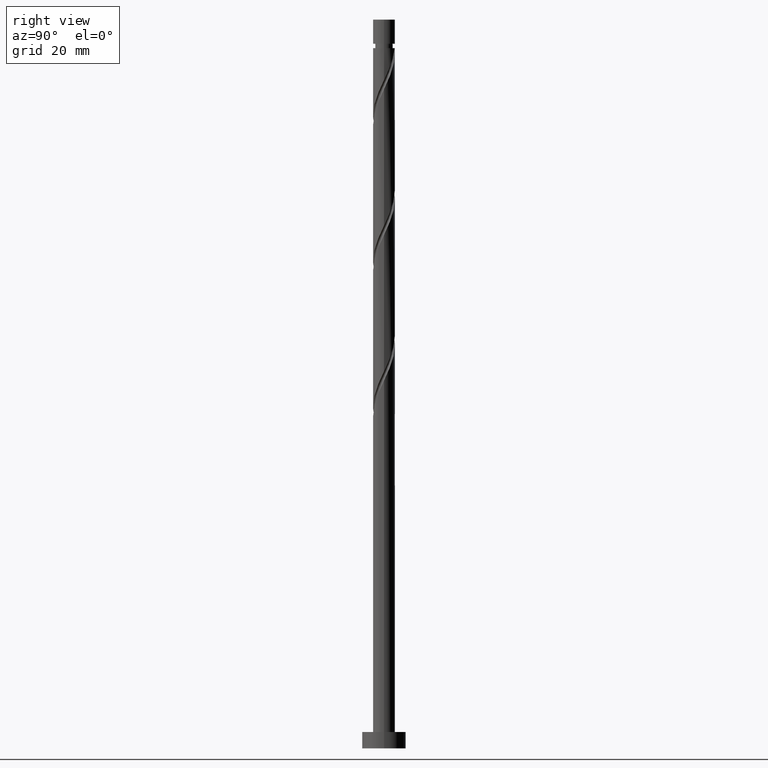
[diagram: clean part render]
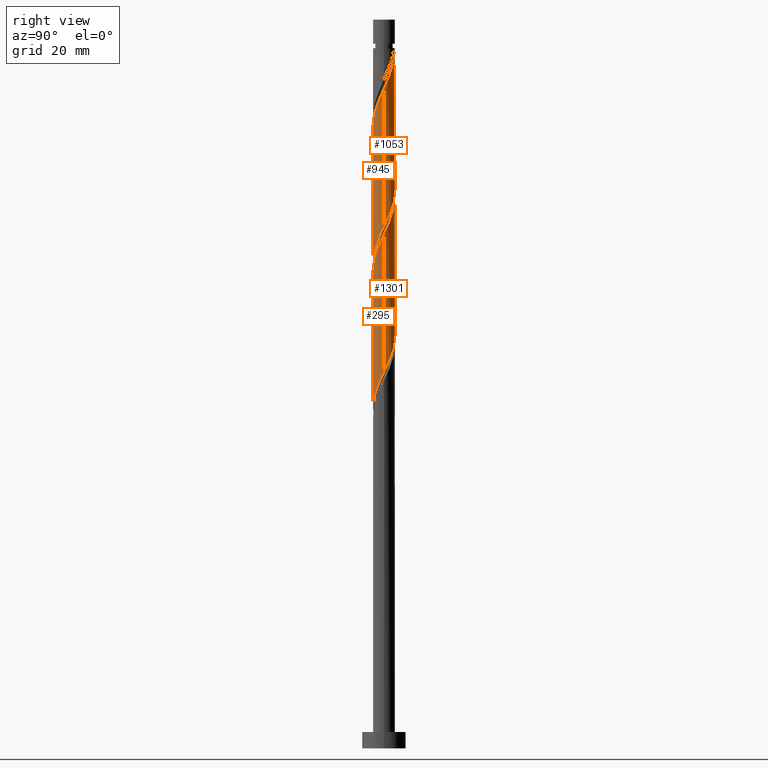
[diagram: same view with one multi-face feature highlighted, each face labeled with its STEP entity id]
A machine part, right view. The highlighted faces form ONE feature: a constant-radius fillet chain: 4 tangent blend faces with common blend radius 2 mm. The faces share edges in the B-rep.
Their STEP definitions:
[1] entity #295 (Cylinder):
#8 = VERTEX_POINT ( 'NONE', #10 ) ;
#10 = CARTESIAN_POINT ( 'NONE',  ( 2.000000000000002665, 1.278808170148940589E-15, 94.03187821203792396 ) ) ;
#15 = CARTESIAN_POINT ( 'NONE',  ( -1.600603406160405084, -1.233189980288572851, 58.51769632770245266 ) ) ;
#22 = CARTESIAN_POINT ( 'NONE',  ( -2.000000000000000000, 0.000000000000000000, 133.4499999999999886 ) ) ;
#35 = CARTESIAN_POINT ( 'NONE',  ( -0.9928482695149690729, -1.759812803970229655, 85.18436299436912407 ) ) ;
#43 = CARTESIAN_POINT ( 'NONE',  ( -0.4568343776401063705, -1.968245701812304072, 86.39648420649034222 ) ) ;
#77 = CARTESIAN_POINT ( 'NONE',  ( -2.000000000000002665, -1.376027504721667048E-15, 80.69854487870459536 ) ) ;
#82 = VECTOR ( 'NONE', #288, 1000.000000000000000 ) ;
#94 = VERTEX_POINT ( 'NONE', #1031 ) ;
#100 = CARTESIAN_POINT ( 'NONE',  ( 1.188337955536408641, -1.634179211325360370, 90.03284784285398246 ) ) ;
#124 = VERTEX_POINT ( 'NONE', #77 ) ;
#132 = DIRECTION ( 'NONE',  ( -0.000000000000000000, -0.000000000000000000, -1.000000000000000000 ) ) ;
#146 = CARTESIAN_POINT ( 'NONE',  ( 2.000000000000000444, -2.303350388338456764E-15, 69.06412050397305791 ) ) ;
#154 = CARTESIAN_POINT ( 'NONE',  ( 0.9928482695149670745, -1.759812803970228101, 64.57830238830852920 ) ) ;
#161 = CARTESIAN_POINT ( 'NONE',  ( -1.786663747202084762, -0.9436744384215548509, 82.76012057012668777 ) ) ;
#169 = CARTESIAN_POINT ( 'NONE',  ( -1.741900447066338176, -0.9827425057002935338, 57.91163572164183648 ) ) ;
#177 = CARTESIAN_POINT ( 'NONE',  ( -1.394470680848406197, -1.433684595806965500, 59.12375693376306174 ) ) ;
#233 = CARTESIAN_POINT ( 'NONE',  ( 1.883197487972274375, -0.7322950311120149935, 92.45709026709637612 ) ) ;
#288 = DIRECTION ( 'NONE',  ( -0.000000000000000000, -0.000000000000000000, -1.000000000000000000 ) ) ;
#295 = ADVANCED_FACE ( 'NONE', ( #1530 ), #1415, .T. ) ;
#309 =( BOUNDED_CURVE ( )  B_SPLINE_CURVE ( 2, ( #146, #794, #1581, #1317, #408, #647, #1327, #420, #1453, #154, #656, #1165, #1419, #1200, #399, #1050, #428, #1191, #177, #15, #169, #526, #898, #1554, #674 ),
 .UNSPECIFIED., .F., .T. ) 
 B_SPLINE_CURVE_WITH_KNOTS ( ( 3, 2, 2, 2, 2, 2, 2, 2, 2, 2, 2, 2, 3 ),
 ( 0.8045252162417511066, 0.8068181818181817677, 0.8181818181818182323, 0.8295454545454545858, 0.8409090909090909394, 0.8522727272727272929, 0.8636363636363636465, 0.8750000000000000000, 0.8863636363636363535, 0.8977272727272727071, 0.9090909090909090606, 0.9204545454545454142, 0.9295252162417512176 ),
 .UNSPECIFIED. ) 
 CURVE ( )  GEOMETRIC_REPRESENTATION_ITEM ( )  RATIONAL_B_SPLINE_CURVE ( ( 0.9061101570135566829, 0.9072237824201389023, 0.9090909090909164991, 0.8998376744372188485, 0.9090909090909164991, 0.8998376744372188485, 0.9090909090909164991, 0.8998376744372188485, 0.9090909090909164991, 0.8998376744372188485, 0.9090909090909164991, 0.8998376744372188485, 0.9090909090909164991, 0.8998376744372188485, 0.9090909090909164991, 0.8998376744372188485, 0.9090909090909164991, 0.8998376744372188485, 0.9090909090909164991, 0.8998376744372188485, 0.9090909090909164991, 0.8998376744372188485, 0.9090909090909164991, 0.9017048011079963343, 0.9061101570135567940 ) ) 
 REPRESENTATION_ITEM ( '' )  );
#330 = CARTESIAN_POINT ( 'NONE',  ( 0.1161895186125003615, -2.017223038501450461, 87.60860541861154616 ) ) ;
#372 =( BOUNDED_CURVE ( )  B_SPLINE_CURVE ( 2, ( #1564, #932, #914, #786, #1308, #161, #924, #665, #1182, #35, #547, #43, #1602, #330, #1144, #614, #1527, #100, #1660, #479, #509, #233, #1514, #1265, #1646 ),
 .UNSPECIFIED., .F., .T. ) 
 B_SPLINE_CURVE_WITH_KNOTS ( ( 3, 2, 2, 2, 2, 2, 2, 2, 2, 2, 2, 2, 3 ),
 ( 0.3045252162417513841, 0.3068181818181817677, 0.3181818181818182323, 0.3295454545454545858, 0.3409090909090909394, 0.3522727272727272929, 0.3636363636363636465, 0.3750000000000000000, 0.3863636363636363535, 0.3977272727272727071, 0.4090909090909090606, 0.4204545454545454142, 0.4295252162417510511 ),
 .UNSPECIFIED. ) 
 CURVE ( )  GEOMETRIC_REPRESENTATION_ITEM ( )  RATIONAL_B_SPLINE_CURVE ( ( 0.9061101570135623451, 0.9072237824201445644, 0.9090909090909219392, 0.8998376744372241776, 0.9090909090909219392, 0.8998376744372241776, 0.9090909090909219392, 0.8998376744372241776, 0.9090909090909219392, 0.8998376744372241776, 0.9090909090909219392, 0.8998376744372241776, 0.9090909090909219392, 0.8998376744372241776, 0.9090909090909219392, 0.8998376744372241776, 0.9090909090909219392, 0.8998376744372241776, 0.9090909090909219392, 0.8998376744372241776, 0.9090909090909219392, 0.8998376744372241776, 0.9090909090909219392, 0.9017048011080018854, 0.9061101570135620120 ) ) 
 REPRESENTATION_ITEM ( '' )  );
#383 = CARTESIAN_POINT ( 'NONE',  ( 0.000000000000000000, 0.000000000000000000, 133.4499999999999886 ) ) ;
#399 = CARTESIAN_POINT ( 'NONE',  ( -0.3979949748426485634, -1.959999999999999964, 61.54799935800549093 ) ) ;
#408 = CARTESIAN_POINT ( 'NONE',  ( 1.883409435608316418, -0.6728810428757545647, 67.60860541861153195 ) ) ;
#420 = CARTESIAN_POINT ( 'NONE',  ( 1.448427499289742126, -1.408810338760219993, 65.79042360042973314 ) ) ;
#428 = CARTESIAN_POINT ( 'NONE',  ( -0.9340691933046018081, -1.768478086411955363, 60.33587814588427989 ) ) ;
#479 = CARTESIAN_POINT ( 'NONE',  ( 1.600603406160406417, -1.233189980288574850, 91.24496905497518640 ) ) ;
#492 = ORIENTED_EDGE ( 'NONE', *, *, #1162, .F. ) ;
#509 = CARTESIAN_POINT ( 'NONE',  ( 1.741900447066340618, -0.9827425057002954212, 91.85102966103579547 ) ) ;
#526 = CARTESIAN_POINT ( 'NONE',  ( -1.883197487972271711, -0.7322950311120142164, 57.30557511558124162 ) ) ;
#539 = VERTEX_POINT ( 'NONE', #908 ) ;
#540 = LINE ( 'NONE', #1298, #959 ) ;
#547 = CARTESIAN_POINT ( 'NONE',  ( -0.7248413235775378327, -1.864029252891266752, 85.79042360042973314 ) ) ;
#606 = ORIENTED_EDGE ( 'NONE', *, *, #1076, .T. ) ;
#614 = CARTESIAN_POINT ( 'NONE',  ( 0.6798004310727963073, -1.902776961498554797, 88.82072663073275010 ) ) ;
#647 = CARTESIAN_POINT ( 'NONE',  ( 1.786663747202082320, -0.9436744384215538517, 67.00254481255093708 ) ) ;
#656 = CARTESIAN_POINT ( 'NONE',  ( 0.7248413235775362784, -1.864029252891264310, 63.97224178224792013 ) ) ;
#665 = CARTESIAN_POINT ( 'NONE',  ( -1.448427499289743459, -1.408810338760221326, 83.97224178224793434 ) ) ;
#674 = CARTESIAN_POINT ( 'NONE',  ( -2.000000000000000000, -3.694334713763628715E-15, 55.73078717063971510 ) ) ;
#786 = CARTESIAN_POINT ( 'NONE',  ( -1.980155124014553403, -0.4020876473299553333, 81.54799935800545541 ) ) ;
#794 = CARTESIAN_POINT ( 'NONE',  ( 2.000000000000000444, -0.05755105304764079194, 68.94202249925483272 ) ) ;
#898 = CARTESIAN_POINT ( 'NONE',  ( -1.948211798543800333, -0.4521844623765076676, 56.69951450952063254 ) ) ;
#908 = CARTESIAN_POINT ( 'NONE',  ( -2.000000000000000000, -3.694334713763628715E-15, 55.73078717063971510 ) ) ;
#914 = CARTESIAN_POINT ( 'NONE',  ( -1.996690616564942733, -0.1150068768444767187, 80.94193875194487475 ) ) ;
#924 = CARTESIAN_POINT ( 'NONE',  ( -1.617545623245913999, -1.176242388590888144, 83.36618117618731105 ) ) ;
#932 = CARTESIAN_POINT ( 'NONE',  ( -2.000000000000002665, -0.05755105304764696061, 80.82064288342280634 ) ) ;
#959 = VECTOR ( 'NONE', #1044, 1000.000000000000000 ) ;
#1031 = CARTESIAN_POINT ( 'NONE',  ( 2.000000000000000444, -2.303350388338456764E-15, 69.06412050397305791 ) ) ;
#1044 = DIRECTION ( 'NONE',  ( -0.000000000000000000, -0.000000000000000000, -1.000000000000000000 ) ) ;
#1050 = CARTESIAN_POINT ( 'NONE',  ( -0.6798004310727959743, -1.902776961498551911, 60.94193875194488186 ) ) ;
#1076 = EDGE_CURVE ( 'NONE', #124, #539, #1170, .T. ) ;
#1100 = ORIENTED_EDGE ( 'NONE', *, *, #1204, .F. ) ;
#1119 = ORIENTED_EDGE ( 'NONE', *, *, #1482, .F. ) ;
#1132 = EDGE_LOOP ( 'NONE', ( #1119, #1100, #606, #492 ) ) ;
#1144 = CARTESIAN_POINT ( 'NONE',  ( 0.3979949748426482858, -1.960000000000002851, 88.21466602467212681 ) ) ;
#1162 = EDGE_CURVE ( 'NONE', #94, #539, #309, .T. ) ;
#1165 = CARTESIAN_POINT ( 'NONE',  ( 0.4568343776401059264, -1.968245701812300963, 63.36618117618729684 ) ) ;
#1170 = LINE ( 'NONE', #22, #82 ) ;
#1182 = CARTESIAN_POINT ( 'NONE',  ( -1.220637884402356210, -1.584311571365225380, 84.57830238830850078 ) ) ;
#1191 = CARTESIAN_POINT ( 'NONE',  ( -1.188337955536407309, -1.634179211325358372, 59.72981753982367792 ) ) ;
#1200 = CARTESIAN_POINT ( 'NONE',  ( -0.1161895186125011109, -2.017223038501448240, 62.15405996406610001 ) ) ;
#1204 = EDGE_CURVE ( 'NONE', #124, #8, #372, .T. ) ;
#1265 = CARTESIAN_POINT ( 'NONE',  ( 2.000000000000001776, -0.2290578547702522838, 93.54591825906661029 ) ) ;
#1298 = CARTESIAN_POINT ( 'NONE',  ( 2.000000000000000000, 2.449293598294706414E-16, 133.4499999999999886 ) ) ;
#1308 = CARTESIAN_POINT ( 'NONE',  ( -1.883409435608319527, -0.6728810428757548978, 82.15405996406612132 ) ) ;
#1317 = CARTESIAN_POINT ( 'NONE',  ( 1.980155124014551182, -0.4020876473299556109, 68.21466602467215523 ) ) ;
#1318 = AXIS2_PLACEMENT_3D ( 'NONE', #383, #132, #1643 ) ;
#1327 = CARTESIAN_POINT ( 'NONE',  ( 1.617545623245912001, -1.176242388590886589, 66.39648420649031380 ) ) ;
#1415 = CYLINDRICAL_SURFACE ( 'NONE', #1318, 2.000000000000000000 ) ;
#1419 = CARTESIAN_POINT ( 'NONE',  ( 0.1703224295138018596, -1.992734370156875157, 62.76012057012668777 ) ) ;
#1453 = CARTESIAN_POINT ( 'NONE',  ( 1.220637884402353990, -1.584311571365224047, 65.18436299436912407 ) ) ;
#1482 = EDGE_CURVE ( 'NONE', #8, #94, #540, .T. ) ;
#1514 = CARTESIAN_POINT ( 'NONE',  ( 1.948211798543802997, -0.4521844623765087223, 93.06315087315701362 ) ) ;
#1527 = CARTESIAN_POINT ( 'NONE',  ( 0.9340691933046023632, -1.768478086411958028, 89.42678723679337338 ) ) ;
#1530 = FACE_OUTER_BOUND ( 'NONE', #1132, .T. ) ;
#1554 = CARTESIAN_POINT ( 'NONE',  ( -2.000000000000000000, -0.2290578547702474266, 56.21674712361101456 ) ) ;
#1564 = CARTESIAN_POINT ( 'NONE',  ( -2.000000000000002665, -1.376027504721667048E-15, 80.69854487870459536 ) ) ;
#1581 = CARTESIAN_POINT ( 'NONE',  ( 1.996690616564939846, -0.1150068768444773709, 68.82072663073276431 ) ) ;
#1602 = CARTESIAN_POINT ( 'NONE',  ( -0.1703224295138029420, -1.992734370156877821, 87.00254481255093708 ) ) ;
#1643 = DIRECTION ( 'NONE',  ( -1.000000000000000000, 0.000000000000000000, 0.000000000000000000 ) ) ;
#1646 = CARTESIAN_POINT ( 'NONE',  ( 2.000000000000002665, 1.278808170148940589E-15, 94.03187821203792396 ) ) ;
#1660 = CARTESIAN_POINT ( 'NONE',  ( 1.394470680848407307, -1.433684595806968165, 90.63890844891457732 ) ) ;
[2] entity #1301 (Cylinder):
#8 = VERTEX_POINT ( 'NONE', #10 ) ;
#10 = CARTESIAN_POINT ( 'NONE',  ( 2.000000000000002665, 1.278808170148940589E-15, 94.03187821203792396 ) ) ;
#29 = CARTESIAN_POINT ( 'NONE',  ( -0.1703224295138024702, 1.992734370156875157, 76.09345390346001636 ) ) ;
#37 =( BOUNDED_CURVE ( )  B_SPLINE_CURVE ( 2, ( #662, #1178, #564, #824, #1110, #89, #596, #854, #988, #1629, #478, #350, #1254, #232, #361, #1102, #846, #1489, #342, #698, #1623, #707, #1368, #223, #58 ),
 .UNSPECIFIED., .F., .T. ) 
 B_SPLINE_CURVE_WITH_KNOTS ( ( 3, 2, 2, 2, 2, 2, 2, 2, 2, 2, 2, 2, 3 ),
 ( 0.4295252162417510511, 0.4318181818181817677, 0.4431818181818182323, 0.4545454545454545858, 0.4659090909090909394, 0.4772727272727272929, 0.4886363636363636465, 0.5000000000000000000, 0.5113636363636363535, 0.5227272727272727071, 0.5340909090909091717, 0.5454545454545454142, 0.5545252162417512176 ),
 .UNSPECIFIED. ) 
 CURVE ( )  GEOMETRIC_REPRESENTATION_ITEM ( )  RATIONAL_B_SPLINE_CURVE ( ( 0.9061101570135620120, 0.9072237824201442313, 0.9090909090909219392, 0.8998376744372241776, 0.9090909090909219392, 0.8998376744372241776, 0.9090909090909219392, 0.8998376744372241776, 0.9090909090909219392, 0.8998376744372241776, 0.9090909090909219392, 0.8998376744372241776, 0.9090909090909219392, 0.8998376744372241776, 0.9090909090909219392, 0.8998376744372241776, 0.9090909090909219392, 0.8998376744372241776, 0.9090909090909219392, 0.8998376744372241776, 0.9090909090909219392, 0.8998376744372241776, 0.9090909090909219392, 0.9017048011080018854, 0.9061101570135621230 ) ) 
 REPRESENTATION_ITEM ( '' )  );
#58 = CARTESIAN_POINT ( 'NONE',  ( -2.000000000000002665, -1.376027504721667048E-15, 107.3652115453712526 ) ) ;
#89 = CARTESIAN_POINT ( 'NONE',  ( 1.786663747202085206, 0.9436744384215541848, 96.09345390346004478 ) ) ;
#94 = VERTEX_POINT ( 'NONE', #1031 ) ;
#125 = DIRECTION ( 'NONE',  ( -0.000000000000000000, -0.000000000000000000, -1.000000000000000000 ) ) ;
#133 = CARTESIAN_POINT ( 'NONE',  ( -1.980155124014551182, 0.4020876473299552778, 81.54799935800548383 ) ) ;
#150 = CARTESIAN_POINT ( 'NONE',  ( 1.394470680848405975, 1.433684595806965723, 72.45709026709637612 ) ) ;
#164 = CARTESIAN_POINT ( 'NONE',  ( -1.883409435608316418, 0.6728810428757542317, 80.94193875194488896 ) ) ;
#223 = CARTESIAN_POINT ( 'NONE',  ( -2.000000000000002220, 0.2290578547702504242, 106.8792515923999389 ) ) ;
#232 = CARTESIAN_POINT ( 'NONE',  ( -0.1161895186125001117, 2.017223038501450461, 100.9419387519448890 ) ) ;
#238 = DIRECTION ( 'NONE',  ( -1.000000000000000000, 0.000000000000000000, 0.000000000000000000 ) ) ;
#276 = CARTESIAN_POINT ( 'NONE',  ( 1.600603406160404418, 1.233189980288572851, 71.85102966103576705 ) ) ;
#293 = CARTESIAN_POINT ( 'NONE',  ( -0.9928482695149674075, 1.759812803970227879, 77.91163572164185780 ) ) ;
#318 =( BOUNDED_CURVE ( )  B_SPLINE_CURVE ( 2, ( #862, #1187, #1160, #133, #164, #507, #909, #1568, #1011, #293, #767, #1423, #29, #1533, #1294, #1038, #1408, #1030, #150, #276, #396, #413, #1433, #1150, #650 ),
 .UNSPECIFIED., .F., .T. ) 
 B_SPLINE_CURVE_WITH_KNOTS ( ( 3, 2, 2, 2, 2, 2, 2, 2, 2, 2, 2, 2, 3 ),
 ( 0.6795252162417512176, 0.6818181818181817677, 0.6931818181818182323, 0.7045454545454545858, 0.7159090909090909394, 0.7272727272727272929, 0.7386363636363636465, 0.7500000000000000000, 0.7613636363636363535, 0.7727272727272727071, 0.7840909090909090606, 0.7954545454545454142, 0.8045252162417511066 ),
 .UNSPECIFIED. ) 
 CURVE ( )  GEOMETRIC_REPRESENTATION_ITEM ( )  RATIONAL_B_SPLINE_CURVE ( ( 0.9061101570135567940, 0.9072237824201390133, 0.9090909090909164991, 0.8998376744372188485, 0.9090909090909164991, 0.8998376744372188485, 0.9090909090909164991, 0.8998376744372188485, 0.9090909090909164991, 0.8998376744372188485, 0.9090909090909164991, 0.8998376744372188485, 0.9090909090909164991, 0.8998376744372188485, 0.9090909090909164991, 0.8998376744372188485, 0.9090909090909164991, 0.8998376744372188485, 0.9090909090909164991, 0.8998376744372188485, 0.9090909090909164991, 0.8998376744372188485, 0.9090909090909164991, 0.9017048011079964454, 0.9061101570135566829 ) ) 
 REPRESENTATION_ITEM ( '' )  );
#342 = CARTESIAN_POINT ( 'NONE',  ( -1.394470680848407307, 1.433684595806968165, 103.9722417822478917 ) ) ;
#350 = CARTESIAN_POINT ( 'NONE',  ( 0.4568343776401065925, 1.968245701812303405, 99.72981753982367081 ) ) ;
#357 = AXIS2_PLACEMENT_3D ( 'NONE', #1502, #125, #238 ) ;
#361 = CARTESIAN_POINT ( 'NONE',  ( -0.3979949748426481193, 1.960000000000002851, 101.5479993580054838 ) ) ;
#374 = ORIENTED_EDGE ( 'NONE', *, *, #1609, .F. ) ;
#377 = CARTESIAN_POINT ( 'NONE',  ( -2.000000000000002665, -1.376027504721667048E-15, 107.3652115453712526 ) ) ;
#396 = CARTESIAN_POINT ( 'NONE',  ( 1.741900447066338176, 0.9827425057002936448, 71.24496905497517218 ) ) ;
#413 = CARTESIAN_POINT ( 'NONE',  ( 1.883197487972271933, 0.7322950311120131062, 70.63890844891457732 ) ) ;
#478 = CARTESIAN_POINT ( 'NONE',  ( 0.7248413235775371666, 1.864029252891267197, 99.12375693376307595 ) ) ;
#507 = CARTESIAN_POINT ( 'NONE',  ( -1.786663747202082320, 0.9436744384215540737, 80.33587814588427989 ) ) ;
#540 = LINE ( 'NONE', #1298, #959 ) ;
#564 = CARTESIAN_POINT ( 'NONE',  ( 1.996690616564942733, 0.1150068768444765244, 94.27527208527818914 ) ) ;
#596 = CARTESIAN_POINT ( 'NONE',  ( 1.617545623245914443, 1.176242388590887700, 96.69951450952063965 ) ) ;
#608 = EDGE_LOOP ( 'NONE', ( #903, #857, #1194, #374 ) ) ;
#650 = CARTESIAN_POINT ( 'NONE',  ( 2.000000000000000444, -2.303350388338456764E-15, 69.06412050397305791 ) ) ;
#662 = CARTESIAN_POINT ( 'NONE',  ( 2.000000000000002665, 1.278808170148940589E-15, 94.03187821203792396 ) ) ;
#698 = CARTESIAN_POINT ( 'NONE',  ( -1.600603406160406639, 1.233189980288574183, 104.5783023883085292 ) ) ;
#707 = CARTESIAN_POINT ( 'NONE',  ( -1.883197487972274153, 0.7322950311120157707, 105.7904236004297331 ) ) ;
#767 = CARTESIAN_POINT ( 'NONE',  ( -0.7248413235775362784, 1.864029252891264310, 77.30557511558123451 ) ) ;
#798 = VECTOR ( 'NONE', #1222, 1000.000000000000000 ) ;
#804 = LINE ( 'NONE', #1610, #798 ) ;
#824 = CARTESIAN_POINT ( 'NONE',  ( 1.980155124014553403, 0.4020876473299550558, 94.88133269133881242 ) ) ;
#846 = CARTESIAN_POINT ( 'NONE',  ( -0.9340691933046029183, 1.768478086411957806, 102.7601205701267020 ) ) ;
#854 = CARTESIAN_POINT ( 'NONE',  ( 1.448427499289744569, 1.408810338760220437, 97.30557511558123451 ) ) ;
#857 = ORIENTED_EDGE ( 'NONE', *, *, #1482, .T. ) ;
#862 = CARTESIAN_POINT ( 'NONE',  ( -2.000000000000000000, -3.694334713763628715E-15, 82.39745383730640071 ) ) ;
#903 = ORIENTED_EDGE ( 'NONE', *, *, #1086, .F. ) ;
#909 = CARTESIAN_POINT ( 'NONE',  ( -1.617545623245911779, 1.176242388590887256, 79.72981753982364239 ) ) ;
#959 = VECTOR ( 'NONE', #1044, 1000.000000000000000 ) ;
#973 = FACE_OUTER_BOUND ( 'NONE', #608, .T. ) ;
#988 = CARTESIAN_POINT ( 'NONE',  ( 1.220637884402355988, 1.584311571365226046, 97.91163572164184359 ) ) ;
#1011 = CARTESIAN_POINT ( 'NONE',  ( -1.220637884402354434, 1.584311571365224047, 78.51769632770246687 ) ) ;
#1030 = CARTESIAN_POINT ( 'NONE',  ( 1.188337955536407531, 1.634179211325358372, 73.06315087315698520 ) ) ;
#1031 = CARTESIAN_POINT ( 'NONE',  ( 2.000000000000000444, -2.303350388338456764E-15, 69.06412050397305791 ) ) ;
#1038 = CARTESIAN_POINT ( 'NONE',  ( 0.6798004310727963073, 1.902776961498551689, 74.27527208527823177 ) ) ;
#1044 = DIRECTION ( 'NONE',  ( -0.000000000000000000, -0.000000000000000000, -1.000000000000000000 ) ) ;
#1086 = EDGE_CURVE ( 'NONE', #8, #1256, #37, .T. ) ;
#1102 = CARTESIAN_POINT ( 'NONE',  ( -0.6798004310727967514, 1.902776961498554353, 102.1540599640660787 ) ) ;
#1110 = CARTESIAN_POINT ( 'NONE',  ( 1.883409435608319527, 0.6728810428757547868, 95.48739329739942150 ) ) ;
#1150 = CARTESIAN_POINT ( 'NONE',  ( 1.999999999999999556, 0.2290578547702495082, 69.55008045694437158 ) ) ;
#1160 = CARTESIAN_POINT ( 'NONE',  ( -1.996690616564939846, 0.1150068768444770934, 82.15405996406610711 ) ) ;
#1178 = CARTESIAN_POINT ( 'NONE',  ( 2.000000000000003109, 0.05755105304763845353, 94.15397621675612072 ) ) ;
#1187 = CARTESIAN_POINT ( 'NONE',  ( -2.000000000000000000, 0.05755105304764320667, 82.27535583258817553 ) ) ;
#1194 = ORIENTED_EDGE ( 'NONE', *, *, #1449, .F. ) ;
#1222 = DIRECTION ( 'NONE',  ( -0.000000000000000000, -0.000000000000000000, -1.000000000000000000 ) ) ;
#1254 = CARTESIAN_POINT ( 'NONE',  ( 0.1703224295138031641, 1.992734370156877821, 100.3358781458842657 ) ) ;
#1256 = VERTEX_POINT ( 'NONE', #377 ) ;
#1294 = CARTESIAN_POINT ( 'NONE',  ( 0.3979949748426487854, 1.959999999999999964, 74.88133269133881242 ) ) ;
#1298 = CARTESIAN_POINT ( 'NONE',  ( 2.000000000000000000, 2.449293598294706414E-16, 133.4499999999999886 ) ) ;
#1301 = ADVANCED_FACE ( 'NONE', ( #973 ), #1650, .T. ) ;
#1368 = CARTESIAN_POINT ( 'NONE',  ( -1.948211798543802997, 0.4521844623765087778, 106.3964842064903564 ) ) ;
#1408 = CARTESIAN_POINT ( 'NONE',  ( 0.9340691933046019191, 1.768478086411955363, 73.66921147921762270 ) ) ;
#1423 = CARTESIAN_POINT ( 'NONE',  ( -0.4568343776401055933, 1.968245701812301407, 76.69951450952065386 ) ) ;
#1433 = CARTESIAN_POINT ( 'NONE',  ( 1.948211798543800333, 0.4521844623765071680, 70.03284784285396825 ) ) ;
#1449 = EDGE_CURVE ( 'NONE', #1621, #94, #318, .T. ) ;
#1458 = CARTESIAN_POINT ( 'NONE',  ( -2.000000000000000000, -3.694334713763628715E-15, 82.39745383730640071 ) ) ;
#1482 = EDGE_CURVE ( 'NONE', #8, #94, #540, .T. ) ;
#1489 = CARTESIAN_POINT ( 'NONE',  ( -1.188337955536408641, 1.634179211325360814, 103.3661811761872968 ) ) ;
#1502 = CARTESIAN_POINT ( 'NONE',  ( 0.000000000000000000, 0.000000000000000000, 133.4499999999999886 ) ) ;
#1533 = CARTESIAN_POINT ( 'NONE',  ( 0.1161895186125005419, 2.017223038501447796, 75.48739329739942150 ) ) ;
#1568 = CARTESIAN_POINT ( 'NONE',  ( -1.448427499289741460, 1.408810338760219993, 79.12375693376307595 ) ) ;
#1609 = EDGE_CURVE ( 'NONE', #1256, #1621, #804, .T. ) ;
#1610 = CARTESIAN_POINT ( 'NONE',  ( -2.000000000000000000, 0.000000000000000000, 133.4499999999999886 ) ) ;
#1621 = VERTEX_POINT ( 'NONE', #1458 ) ;
#1623 = CARTESIAN_POINT ( 'NONE',  ( -1.741900447066340618, 0.9827425057002951991, 105.1843629943691525 ) ) ;
#1629 = CARTESIAN_POINT ( 'NONE',  ( 0.9928482695149681847, 1.759812803970230322, 98.51769632770242424 ) ) ;
#1650 = CYLINDRICAL_SURFACE ( 'NONE', #357, 2.000000000000000000 ) ;
[3] entity #945 (Cylinder):
#18 = ORIENTED_EDGE ( 'NONE', *, *, #771, .F. ) ;
#62 = CARTESIAN_POINT ( 'NONE',  ( -0.3979949748426485634, -1.959999999999999964, 88.21466602467215523 ) ) ;
#71 = CARTESIAN_POINT ( 'NONE',  ( -1.448427499289743459, -1.408810338760221326, 110.6389084489145773 ) ) ;
#76 = CARTESIAN_POINT ( 'NONE',  ( 1.996690616564939846, -0.1150068768444773709, 95.48739329739942150 ) ) ;
#84 = CARTESIAN_POINT ( 'NONE',  ( -0.9928482695149690729, -1.759812803970229655, 111.8510296610357955 ) ) ;
#96 = CARTESIAN_POINT ( 'NONE',  ( -1.948211798543800333, -0.4521844623765076676, 83.36618117618731105 ) ) ;
#196 = CARTESIAN_POINT ( 'NONE',  ( 1.188337955536408641, -1.634179211325360370, 116.6995145095206396 ) ) ;
#206 = CARTESIAN_POINT ( 'NONE',  ( 2.000000000000002665, 1.278808170148940786E-15, 120.6985448787045812 ) ) ;
#215 = CARTESIAN_POINT ( 'NONE',  ( 1.394470680848407307, -1.433684595806968165, 117.3055751155812487 ) ) ;
#227 = CARTESIAN_POINT ( 'NONE',  ( -1.188337955536407309, -1.634179211325358372, 86.39648420649032801 ) ) ;
#324 = CARTESIAN_POINT ( 'NONE',  ( -0.1703224295138029420, -1.992734370156877821, 113.6692114792176227 ) ) ;
#327 = CARTESIAN_POINT ( 'NONE',  ( -0.1161895186125011109, -2.017223038501448240, 88.82072663073273588 ) ) ;
#334 = CARTESIAN_POINT ( 'NONE',  ( -1.617545623245913999, -1.176242388590888144, 110.0328478428539825 ) ) ;
#346 = CARTESIAN_POINT ( 'NONE',  ( -1.741900447066338176, -0.9827425057002935338, 84.57830238830848657 ) ) ;
#377 = CARTESIAN_POINT ( 'NONE',  ( -2.000000000000002665, -1.376027504721667048E-15, 107.3652115453712526 ) ) ;
#412 = CARTESIAN_POINT ( 'NONE',  ( 2.000000000000000000, 2.449293598294706414E-16, 133.4499999999999886 ) ) ;
#447 = CARTESIAN_POINT ( 'NONE',  ( 0.9928482695149670745, -1.759812803970228101, 91.24496905497521482 ) ) ;
#455 = CARTESIAN_POINT ( 'NONE',  ( 1.948211798543802997, -0.4521844623765087223, 119.7298175398236566 ) ) ;
#466 = CARTESIAN_POINT ( 'NONE',  ( -2.000000000000000000, -3.694334713763628715E-15, 82.39745383730640071 ) ) ;
#474 = CARTESIAN_POINT ( 'NONE',  ( -2.000000000000002665, -1.376027504721667048E-15, 107.3652115453712526 ) ) ;
#480 = EDGE_LOOP ( 'NONE', ( #1432, #874, #1367, #18 ) ) ;
#551 = DIRECTION ( 'NONE',  ( -1.000000000000000000, 0.000000000000000000, 0.000000000000000000 ) ) ;
#554 = EDGE_CURVE ( 'NONE', #1656, #1441, #1173, .T. ) ;
#569 = CARTESIAN_POINT ( 'NONE',  ( 0.1703224295138018596, -1.992734370156875157, 89.42678723679337338 ) ) ;
#576 = CARTESIAN_POINT ( 'NONE',  ( 1.448427499289742126, -1.408810338760219993, 92.45709026709641876 ) ) ;
#600 = CARTESIAN_POINT ( 'NONE',  ( -1.980155124014553403, -0.4020876473299553333, 108.2146660246721410 ) ) ;
#692 = CARTESIAN_POINT ( 'NONE',  ( -1.220637884402356210, -1.584311571365225380, 111.2449690549752006 ) ) ;
#700 = CARTESIAN_POINT ( 'NONE',  ( 1.883409435608316418, -0.6728810428757545647, 94.27527208527821756 ) ) ;
#710 = CARTESIAN_POINT ( 'NONE',  ( 2.000000000000000444, -0.05755105304764637081, 95.60868916592144728 ) ) ;
#716 = CARTESIAN_POINT ( 'NONE',  ( -2.000000000000002665, -0.05755105304764054908, 107.4873095500894493 ) ) ;
#727 = CARTESIAN_POINT ( 'NONE',  ( 2.000000000000000444, -2.303350388338456764E-15, 95.73078717063968668 ) ) ;
#771 = EDGE_CURVE ( 'NONE', #1441, #1621, #929, .T. ) ;
#798 = VECTOR ( 'NONE', #1222, 1000.000000000000000 ) ;
#802 = EDGE_CURVE ( 'NONE', #1256, #1656, #1464, .T. ) ;
#804 = LINE ( 'NONE', #1610, #798 ) ;
#812 = CARTESIAN_POINT ( 'NONE',  ( 1.786663747202082320, -0.9436744384215538517, 93.66921147921760848 ) ) ;
#821 = CARTESIAN_POINT ( 'NONE',  ( 0.3979949748426482858, -1.960000000000002851, 114.8813326913388124 ) ) ;
#830 = CARTESIAN_POINT ( 'NONE',  ( 0.9340691933046023632, -1.768478086411958028, 116.0934539034600448 ) ) ;
#837 = CARTESIAN_POINT ( 'NONE',  ( 2.000000000000002665, 1.278808170148940589E-15, 120.6985448787045669 ) ) ;
#874 = ORIENTED_EDGE ( 'NONE', *, *, #802, .F. ) ;
#895 = CARTESIAN_POINT ( 'NONE',  ( 0.000000000000000000, 0.000000000000000000, 133.4499999999999886 ) ) ;
#916 = DIRECTION ( 'NONE',  ( -0.000000000000000000, -0.000000000000000000, -1.000000000000000000 ) ) ;
#929 =( BOUNDED_CURVE ( )  B_SPLINE_CURVE ( 2, ( #727, #710, #76, #963, #700, #812, #1241, #576, #1250, #447, #972, #948, #569, #327, #62, #1492, #1224, #227, #1471, #1106, #346, #955, #96, #1634, #466 ),
 .UNSPECIFIED., .F., .T. ) 
 B_SPLINE_CURVE_WITH_KNOTS ( ( 3, 2, 2, 2, 2, 2, 2, 2, 2, 2, 2, 2, 3 ),
 ( 0.5545252162417513286, 0.5568181818181817677, 0.5681818181818182323, 0.5795454545454545858, 0.5909090909090909394, 0.6022727272727272929, 0.6136363636363636465, 0.6250000000000000000, 0.6363636363636363535, 0.6477272727272727071, 0.6590909090909090606, 0.6704545454545454142, 0.6795252162417512176 ),
 .UNSPECIFIED. ) 
 CURVE ( )  GEOMETRIC_REPRESENTATION_ITEM ( )  RATIONAL_B_SPLINE_CURVE ( ( 0.9061101570135567940, 0.9072237824201390133, 0.9090909090909164991, 0.8998376744372188485, 0.9090909090909164991, 0.8998376744372188485, 0.9090909090909164991, 0.8998376744372188485, 0.9090909090909164991, 0.8998376744372188485, 0.9090909090909164991, 0.8998376744372188485, 0.9090909090909164991, 0.8998376744372188485, 0.9090909090909164991, 0.8998376744372188485, 0.9090909090909164991, 0.8998376744372188485, 0.9090909090909164991, 0.8998376744372188485, 0.9090909090909164991, 0.8998376744372188485, 0.9090909090909164991, 0.9017048011079963343, 0.9061101570135567940 ) ) 
 REPRESENTATION_ITEM ( '' )  );
#930 = CYLINDRICAL_SURFACE ( 'NONE', #1244, 2.000000000000000000 ) ;
#941 = CARTESIAN_POINT ( 'NONE',  ( -1.996690616564942733, -0.1150068768444767187, 107.6086054186115319 ) ) ;
#945 = ADVANCED_FACE ( 'NONE', ( #1059 ), #930, .T. ) ;
#948 = CARTESIAN_POINT ( 'NONE',  ( 0.4568343776401059264, -1.968245701812300963, 90.03284784285395403 ) ) ;
#955 = CARTESIAN_POINT ( 'NONE',  ( -1.883197487972271711, -0.7322950311120142164, 83.97224178224790592 ) ) ;
#963 = CARTESIAN_POINT ( 'NONE',  ( 1.980155124014551182, -0.4020876473299556109, 94.88133269133882663 ) ) ;
#972 = CARTESIAN_POINT ( 'NONE',  ( 0.7248413235775362784, -1.864029252891264310, 90.63890844891457732 ) ) ;
#985 = CARTESIAN_POINT ( 'NONE',  ( 2.000000000000000444, -2.303350388338456764E-15, 95.73078717063968668 ) ) ;
#1048 = DIRECTION ( 'NONE',  ( -0.000000000000000000, -0.000000000000000000, -1.000000000000000000 ) ) ;
#1059 = FACE_OUTER_BOUND ( 'NONE', #480, .T. ) ;
#1089 = CARTESIAN_POINT ( 'NONE',  ( -0.7248413235775378327, -1.864029252891266752, 112.4570902670963761 ) ) ;
#1095 = CARTESIAN_POINT ( 'NONE',  ( -1.786663747202084762, -0.9436744384215548509, 109.4267872367933592 ) ) ;
#1106 = CARTESIAN_POINT ( 'NONE',  ( -1.600603406160405084, -1.233189980288572851, 85.18436299436912407 ) ) ;
#1115 = CARTESIAN_POINT ( 'NONE',  ( -0.4568343776401063705, -1.968245701812304072, 113.0631508731569852 ) ) ;
#1173 = LINE ( 'NONE', #412, #1401 ) ;
#1222 = DIRECTION ( 'NONE',  ( -0.000000000000000000, -0.000000000000000000, -1.000000000000000000 ) ) ;
#1224 = CARTESIAN_POINT ( 'NONE',  ( -0.9340691933046018081, -1.768478086411955363, 87.00254481255093708 ) ) ;
#1233 = CARTESIAN_POINT ( 'NONE',  ( -1.883409435608319527, -0.6728810428757548978, 108.8207266307327643 ) ) ;
#1241 = CARTESIAN_POINT ( 'NONE',  ( 1.617545623245912001, -1.176242388590886589, 93.06315087315697099 ) ) ;
#1244 = AXIS2_PLACEMENT_3D ( 'NONE', #895, #1048, #551 ) ;
#1250 = CARTESIAN_POINT ( 'NONE',  ( 1.220637884402353990, -1.584311571365224047, 91.85102966103580968 ) ) ;
#1256 = VERTEX_POINT ( 'NONE', #377 ) ;
#1350 = CARTESIAN_POINT ( 'NONE',  ( 0.6798004310727963073, -1.902776961498554797, 115.4873932973994215 ) ) ;
#1367 = ORIENTED_EDGE ( 'NONE', *, *, #1609, .T. ) ;
#1401 = VECTOR ( 'NONE', #916, 1000.000000000000000 ) ;
#1432 = ORIENTED_EDGE ( 'NONE', *, *, #554, .F. ) ;
#1441 = VERTEX_POINT ( 'NONE', #985 ) ;
#1458 = CARTESIAN_POINT ( 'NONE',  ( -2.000000000000000000, -3.694334713763628715E-15, 82.39745383730640071 ) ) ;
#1464 =( BOUNDED_CURVE ( )  B_SPLINE_CURVE ( 2, ( #474, #716, #941, #600, #1233, #1095, #334, #71, #692, #84, #1089, #1115, #324, #1501, #821, #1350, #830, #196, #215, #1612, #1467, #1619, #455, #1481, #206 ),
 .UNSPECIFIED., .F., .T. ) 
 B_SPLINE_CURVE_WITH_KNOTS ( ( 3, 2, 2, 2, 2, 2, 2, 2, 2, 2, 2, 2, 3 ),
 ( 0.5545252162417512176, 0.5568181818181818787, 0.5681818181818181213, 0.5795454545454545858, 0.5909090909090908283, 0.6022727272727272929, 0.6136363636363636465, 0.6250000000000000000, 0.6363636363636363535, 0.6477272727272727071, 0.6590909090909091717, 0.6704545454545454142, 0.6795252162417513286 ),
 .UNSPECIFIED. ) 
 CURVE ( )  GEOMETRIC_REPRESENTATION_ITEM ( )  RATIONAL_B_SPLINE_CURVE ( ( 0.9061101570135621230, 0.9072237824201443424, 0.9090909090909219392, 0.8998376744372241776, 0.9090909090909219392, 0.8998376744372241776, 0.9090909090909219392, 0.8998376744372241776, 0.9090909090909219392, 0.8998376744372241776, 0.9090909090909219392, 0.8998376744372241776, 0.9090909090909219392, 0.8998376744372241776, 0.9090909090909219392, 0.8998376744372241776, 0.9090909090909219392, 0.8998376744372241776, 0.9090909090909219392, 0.8998376744372241776, 0.9090909090909219392, 0.8998376744372241776, 0.9090909090909219392, 0.9017048011080017744, 0.9061101570135622341 ) ) 
 REPRESENTATION_ITEM ( '' )  );
#1467 = CARTESIAN_POINT ( 'NONE',  ( 1.741900447066340618, -0.9827425057002954212, 118.5176963277024242 ) ) ;
#1471 = CARTESIAN_POINT ( 'NONE',  ( -1.394470680848406197, -1.433684595806965500, 85.79042360042973314 ) ) ;
#1481 = CARTESIAN_POINT ( 'NONE',  ( 2.000000000000002665, -0.2290578547702475654, 120.2125849257332959 ) ) ;
#1492 = CARTESIAN_POINT ( 'NONE',  ( -0.6798004310727959743, -1.902776961498551911, 87.60860541861157458 ) ) ;
#1501 = CARTESIAN_POINT ( 'NONE',  ( 0.1161895186125003615, -2.017223038501450461, 114.2752720852781891 ) ) ;
#1609 = EDGE_CURVE ( 'NONE', #1256, #1621, #804, .T. ) ;
#1610 = CARTESIAN_POINT ( 'NONE',  ( -2.000000000000000000, 0.000000000000000000, 133.4499999999999886 ) ) ;
#1612 = CARTESIAN_POINT ( 'NONE',  ( 1.600603406160406417, -1.233189980288574850, 117.9116357216418294 ) ) ;
#1619 = CARTESIAN_POINT ( 'NONE',  ( 1.883197487972274375, -0.7322950311120149935, 119.1237569337630333 ) ) ;
#1621 = VERTEX_POINT ( 'NONE', #1458 ) ;
#1634 = CARTESIAN_POINT ( 'NONE',  ( -2.000000000000000000, -0.2290578547702474266, 82.88341379027767175 ) ) ;
#1656 = VERTEX_POINT ( 'NONE', #837 ) ;
[4] entity #1053 (Cylinder):
#4 = VERTEX_POINT ( 'NONE', #516 ) ;
#107 = CARTESIAN_POINT ( 'NONE',  ( 1.996690616564942733, 0.1150068768444765244, 120.9419387519448605 ) ) ;
#121 = CARTESIAN_POINT ( 'NONE',  ( 0.6798004310727963073, 1.902776961498551689, 100.9419387519449032 ) ) ;
#136 = CARTESIAN_POINT ( 'NONE',  ( -0.9928482695149674075, 1.759812803970227879, 104.5783023883085150 ) ) ;
#139 = EDGE_CURVE ( 'NONE', #1656, #780, #148, .T. ) ;
#148 =( BOUNDED_CURVE ( )  B_SPLINE_CURVE ( 2, ( #1613, #1262, #107, #1663, #1018, #752, #1140, #627, #513, #1134, #270, #886, #1655, #1518, #1398 ),
 .UNSPECIFIED., .F., .T. ) 
 B_SPLINE_CURVE_WITH_KNOTS ( ( 3, 2, 2, 2, 2, 2, 2, 3 ),
 ( 0.6795252162417513286, 0.6818181818181818787, 0.6931818181818181213, 0.7045454545454545858, 0.7159090909090908283, 0.7272727272727272929, 0.7386363636363636465, 0.7500000000000000000 ),
 .UNSPECIFIED. ) 
 CURVE ( )  GEOMETRIC_REPRESENTATION_ITEM ( )  RATIONAL_B_SPLINE_CURVE ( ( 0.9061101570135622341, 0.9072237824201443424, 0.9090909090909219392, 0.8998376744372241776, 0.9090909090909219392, 0.8998376744372241776, 0.9090909090909219392, 0.8998376744372241776, 0.9090909090909219392, 0.8998376744372241776, 0.9090909090909219392, 0.8998376744372241776, 0.9090909090909219392, 0.8998376744372241776, 0.9090909090909219392 ) ) 
 REPRESENTATION_ITEM ( '' )  );
#152 = DIRECTION ( 'NONE',  ( -0.000000000000000000, -0.000000000000000000, -1.000000000000000000 ) ) ;
#183 = EDGE_CURVE ( 'NONE', #494, #780, #1202, .T. ) ;
#191 = VECTOR ( 'NONE', #317, 1000.000000000000000 ) ;
#250 = CARTESIAN_POINT ( 'NONE',  ( -1.617545623245911779, 1.176242388590887256, 106.3964842064903280 ) ) ;
#265 = CARTESIAN_POINT ( 'NONE',  ( 0.3979949748426487854, 1.959999999999999964, 101.5479993580054980 ) ) ;
#270 = CARTESIAN_POINT ( 'NONE',  ( 0.7248413235775371666, 1.864029252891267197, 125.7904236004297474 ) ) ;
#280 = DIRECTION ( 'NONE',  ( -1.000000000000000000, 0.000000000000000000, 0.000000000000000000 ) ) ;
#301 = CARTESIAN_POINT ( 'NONE',  ( -1.999999999999996669, 0.000000000000000000, 128.2146660246721694 ) ) ;
#317 = DIRECTION ( 'NONE',  ( -0.000000000000000000, -0.000000000000000000, -1.000000000000000000 ) ) ;
#332 = ORIENTED_EDGE ( 'NONE', *, *, #819, .F. ) ;
#351 = CARTESIAN_POINT ( 'NONE',  ( 1.948211798543800333, 0.4521844623765071680, 96.69951450952063965 ) ) ;
#370 = CARTESIAN_POINT ( 'NONE',  ( -2.000000000000000444, 1.884559408640555319E-15, 109.0641205039730437 ) ) ;
#380 = CARTESIAN_POINT ( 'NONE',  ( 1.741900447066338176, 0.9827425057002936448, 97.91163572164182938 ) ) ;
#384 = ORIENTED_EDGE ( 'NONE', *, *, #139, .F. ) ;
#398 = FACE_OUTER_BOUND ( 'NONE', #1185, .T. ) ;
#412 = CARTESIAN_POINT ( 'NONE',  ( 2.000000000000000000, 2.449293598294706414E-16, 133.4499999999999886 ) ) ;
#494 = VERTEX_POINT ( 'NONE', #301 ) ;
#504 = CARTESIAN_POINT ( 'NONE',  ( 1.600603406160404418, 1.233189980288572851, 98.51769632770245266 ) ) ;
#513 = CARTESIAN_POINT ( 'NONE',  ( 1.220637884402355988, 1.584311571365226046, 124.5783023883085292 ) ) ;
#516 = CARTESIAN_POINT ( 'NONE',  ( -2.000000000000000444, 1.884559408640555319E-15, 109.0641205039730437 ) ) ;
#554 = EDGE_CURVE ( 'NONE', #1656, #1441, #1173, .T. ) ;
#605 = AXIS2_PLACEMENT_3D ( 'NONE', #1020, #620, #635 ) ;
#620 = DIRECTION ( 'NONE',  ( -0.000000000000000000, -0.000000000000000000, -1.000000000000000000 ) ) ;
#627 = CARTESIAN_POINT ( 'NONE',  ( 1.448427499289744569, 1.408810338760220437, 123.9722417822479059 ) ) ;
#635 = DIRECTION ( 'NONE',  ( -1.000000000000000000, 0.000000000000000000, 0.000000000000000000 ) ) ;
#639 = CARTESIAN_POINT ( 'NONE',  ( 0.9340691933046019191, 1.768478086411955363, 100.3358781458842657 ) ) ;
#731 = CARTESIAN_POINT ( 'NONE',  ( 2.000000000000000444, -2.303350388338456764E-15, 95.73078717063968668 ) ) ;
#752 = CARTESIAN_POINT ( 'NONE',  ( 1.786663747202085206, 0.9436744384215541848, 122.7601205701267020 ) ) ;
#780 = VERTEX_POINT ( 'NONE', #1600 ) ;
#819 = EDGE_CURVE ( 'NONE', #494, #4, #850, .T. ) ;
#837 = CARTESIAN_POINT ( 'NONE',  ( 2.000000000000002665, 1.278808170148940589E-15, 120.6985448787045669 ) ) ;
#850 = LINE ( 'NONE', #1372, #191 ) ;
#855 = CARTESIAN_POINT ( 'NONE',  ( 2.000000000000000888, 0.2290578547702440404, 96.21674712361100035 ) ) ;
#872 = CARTESIAN_POINT ( 'NONE',  ( -1.980155124014551182, 0.4020876473299552778, 108.2146660246721694 ) ) ;
#882 = CARTESIAN_POINT ( 'NONE',  ( 1.188337955536407531, 1.634179211325358372, 99.72981753982368502 ) ) ;
#885 = AXIS2_PLACEMENT_3D ( 'NONE', #905, #152, #280 ) ;
#886 = CARTESIAN_POINT ( 'NONE',  ( 0.4568343776401065925, 1.968245701812303405, 126.3964842064903280 ) ) ;
#890 = CARTESIAN_POINT ( 'NONE',  ( -1.220637884402354434, 1.584311571365224047, 105.1843629943691383 ) ) ;
#905 = CARTESIAN_POINT ( 'NONE',  ( 0.000000000000000000, 0.000000000000000000, 133.4499999999999886 ) ) ;
#916 = DIRECTION ( 'NONE',  ( -0.000000000000000000, -0.000000000000000000, -1.000000000000000000 ) ) ;
#977 = CARTESIAN_POINT ( 'NONE',  ( 1.883197487972271933, 0.7322950311120131062, 97.30557511558123451 ) ) ;
#985 = CARTESIAN_POINT ( 'NONE',  ( 2.000000000000000444, -2.303350388338456764E-15, 95.73078717063968668 ) ) ;
#998 = CARTESIAN_POINT ( 'NONE',  ( -1.996690616564939846, 0.1150068768444770934, 108.8207266307327359 ) ) ;
#1014 = CARTESIAN_POINT ( 'NONE',  ( -1.786663747202082320, 0.9436744384215540737, 107.0025448125509229 ) ) ;
#1018 = CARTESIAN_POINT ( 'NONE',  ( 1.883409435608319527, 0.6728810428757547868, 122.1540599640661071 ) ) ;
#1020 = CARTESIAN_POINT ( 'NONE',  ( 0.000000000000000000, 0.000000000000000000, 128.2146660246721694 ) ) ;
#1053 = ADVANCED_FACE ( 'NONE', ( #398 ), #1304, .T. ) ;
#1134 = CARTESIAN_POINT ( 'NONE',  ( 0.9928482695149681847, 1.759812803970230322, 125.1843629943691241 ) ) ;
#1138 = CARTESIAN_POINT ( 'NONE',  ( 1.394470680848405975, 1.433684595806965723, 99.12375693376307595 ) ) ;
#1140 = CARTESIAN_POINT ( 'NONE',  ( 1.617545623245914443, 1.176242388590887700, 123.3661811761873111 ) ) ;
#1159 = ORIENTED_EDGE ( 'NONE', *, *, #554, .T. ) ;
#1161 = ORIENTED_EDGE ( 'NONE', *, *, #183, .T. ) ;
#1173 = LINE ( 'NONE', #412, #1401 ) ;
#1185 = EDGE_LOOP ( 'NONE', ( #384, #1159, #1370, #332, #1161 ) ) ;
#1202 = CIRCLE ( 'NONE', #605, 1.999999999999996669 ) ;
#1229 =( BOUNDED_CURVE ( )  B_SPLINE_CURVE ( 2, ( #370, #1278, #998, #872, #1394, #1014, #250, #1537, #890, #136, #1403, #1506, #1412, #1272, #265, #121, #639, #882, #1138, #504, #380, #977, #351, #855, #731 ),
 .UNSPECIFIED., .F., .T. ) 
 B_SPLINE_CURVE_WITH_KNOTS ( ( 3, 2, 2, 2, 2, 2, 2, 2, 2, 2, 2, 2, 3 ),
 ( 0.4295252162417513841, 0.4318181818181818232, 0.4431818181818181768, 0.4545454545454545303, 0.4659090909090908839, 0.4772727272727272929, 0.4886363636363636465, 0.5000000000000000000, 0.5113636363636363535, 0.5227272727272727071, 0.5340909090909090606, 0.5454545454545454142, 0.5545252162417513286 ),
 .UNSPECIFIED. ) 
 CURVE ( )  GEOMETRIC_REPRESENTATION_ITEM ( )  RATIONAL_B_SPLINE_CURVE ( ( 0.9061101570135567940, 0.9072237824201390133, 0.9090909090909164991, 0.8998376744372188485, 0.9090909090909164991, 0.8998376744372188485, 0.9090909090909164991, 0.8998376744372188485, 0.9090909090909164991, 0.8998376744372188485, 0.9090909090909164991, 0.8998376744372188485, 0.9090909090909164991, 0.8998376744372188485, 0.9090909090909164991, 0.8998376744372188485, 0.9090909090909164991, 0.8998376744372188485, 0.9090909090909164991, 0.8998376744372188485, 0.9090909090909164991, 0.8998376744372188485, 0.9090909090909164991, 0.9017048011079962233, 0.9061101570135567940 ) ) 
 REPRESENTATION_ITEM ( '' )  );
#1236 = EDGE_CURVE ( 'NONE', #4, #1441, #1229, .T. ) ;
#1262 = CARTESIAN_POINT ( 'NONE',  ( 2.000000000000003109, 0.05755105304764319973, 120.8206428834228205 ) ) ;
#1272 = CARTESIAN_POINT ( 'NONE',  ( 0.1161895186125005419, 2.017223038501447796, 102.1540599640660929 ) ) ;
#1278 = CARTESIAN_POINT ( 'NONE',  ( -2.000000000000000444, 0.05755105304764599611, 108.9420224992547901 ) ) ;
#1304 = CYLINDRICAL_SURFACE ( 'NONE', #885, 2.000000000000000000 ) ;
#1370 = ORIENTED_EDGE ( 'NONE', *, *, #1236, .F. ) ;
#1372 = CARTESIAN_POINT ( 'NONE',  ( -2.000000000000000000, 0.000000000000000000, 133.4499999999999886 ) ) ;
#1394 = CARTESIAN_POINT ( 'NONE',  ( -1.883409435608316418, 0.6728810428757542317, 107.6086054186115604 ) ) ;
#1398 = CARTESIAN_POINT ( 'NONE',  ( -0.3979949748426479528, 1.960000000000000409, 128.2146660246721694 ) ) ;
#1401 = VECTOR ( 'NONE', #916, 1000.000000000000000 ) ;
#1403 = CARTESIAN_POINT ( 'NONE',  ( -0.7248413235775362784, 1.864029252891264310, 103.9722417822478917 ) ) ;
#1412 = CARTESIAN_POINT ( 'NONE',  ( -0.1703224295138024702, 1.992734370156875157, 102.7601205701266736 ) ) ;
#1441 = VERTEX_POINT ( 'NONE', #985 ) ;
#1506 = CARTESIAN_POINT ( 'NONE',  ( -0.4568343776401055933, 1.968245701812301407, 103.3661811761873253 ) ) ;
#1518 = CARTESIAN_POINT ( 'NONE',  ( -0.1161895186125001117, 2.017223038501450461, 127.6086054186115604 ) ) ;
#1537 = CARTESIAN_POINT ( 'NONE',  ( -1.448427499289741460, 1.408810338760219993, 105.7904236004297047 ) ) ;
#1600 = CARTESIAN_POINT ( 'NONE',  ( -0.3979949748426479528, 1.960000000000000409, 128.2146660246721694 ) ) ;
#1613 = CARTESIAN_POINT ( 'NONE',  ( 2.000000000000002665, 1.278808170148940786E-15, 120.6985448787045812 ) ) ;
#1655 = CARTESIAN_POINT ( 'NONE',  ( 0.1703224295138031641, 1.992734370156877821, 127.0025448125509655 ) ) ;
#1656 = VERTEX_POINT ( 'NONE', #837 ) ;
#1663 = CARTESIAN_POINT ( 'NONE',  ( 1.980155124014553403, 0.4020876473299550558, 121.5479993580054838 ) ) ;